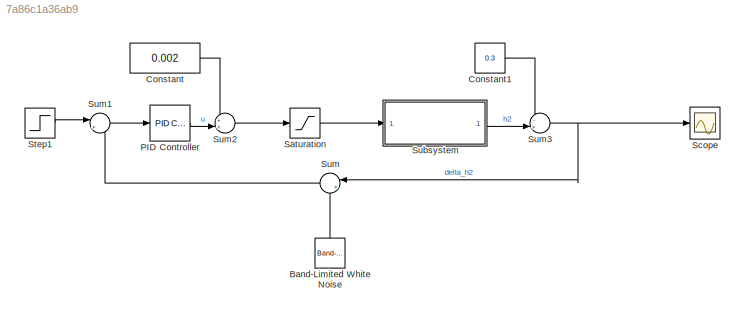
MODEL slx_7a86c1a36ab9
KIND model
CONFIG AbsTol = auto
CONFIG EnableMultiTasking = off
CONFIG FixedStep = 0.001
CONFIG MaxStep = auto
CONFIG MinStep = auto
CONFIG RelTol = 1e-3
CONFIG SampleTimeConstraint = Unconstrained
CONFIG SolverName = ode4
CONFIG StartTime = 0.0
CONFIG StopTime = 50
BLOCK [Reference] Band-Limited White Noise  REF=simulink/Sources/Band-Limited
White Noise
  NameLocation = right
  SourceBlock = simulink/Sources/Band-Limited\nWhite Noise
  SourceType = Band-Limited White Noise.
BLOCK [Constant] Constant
  Value = 0.002
BLOCK [Constant] Constant1
  Value = 0.3
BLOCK [Reference] PID Controller  REF=slpidlib/PID Controller
  LibrarySourceBlock = simulink/Continuous/PID Controller
  SourceBlock = slpidlib/PID Controller
  SourceType = PID 1dof
BLOCK [Saturate] Saturation
BLOCK [Scope] Scope
  Floating = off
  NumInputPorts = 1
  ScopeSpecificationString = Simulink.scopes.TimeScopeBlockCfg('CurrentConfiguration', extmgr.ConfigurationSet(extmgr.Configuration('Core','General UI',true,'DisplayFullSourceName',false,'ShowMainToolbar',true,'FigureColor',[0.125490196078431 0.125490196078431 0.125490196078431]),extmgr.Configuration('Sources','WiredSimulink',true,'DataLogging',false,'DataLoggingVariableName','ScopeData','DataLoggingLimitDataPoints',false,'Da...<+2668ch>
BLOCK [Step] Step1
  After = 0.8
  SampleTime = 0
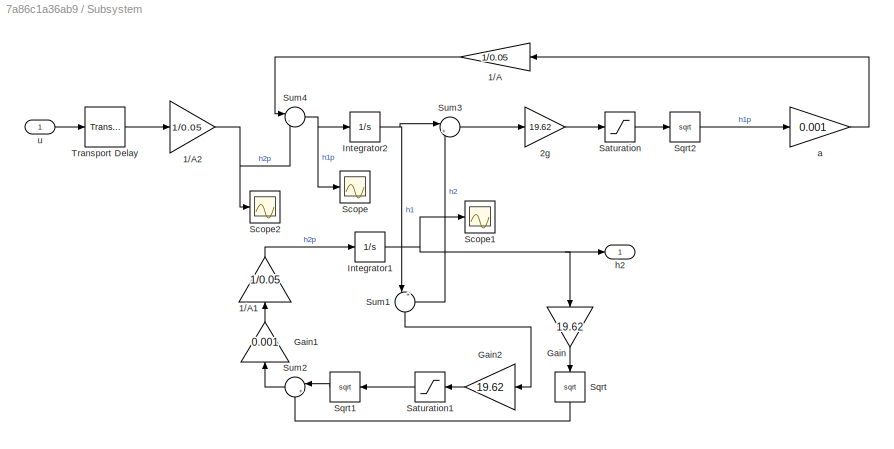
BLOCK [SubSystem] Subsystem
BLOCK [Gain] Subsystem/1//A
  Gain = 1/0.05
BLOCK [Gain] Subsystem/1//A1
  Gain = 1/0.05
  NameLocation = left
BLOCK [Gain] Subsystem/1//A2
  Gain = 1/0.05
  NameLocation = top
BLOCK [Gain] Subsystem/2g
  Gain = 19.62
BLOCK [Gain] Subsystem/Gain
  Gain = 19.62
  NameLocation = left
BLOCK [Gain] Subsystem/Gain1
  Gain = 0.001
  NameLocation = right
BLOCK [Gain] Subsystem/Gain2
  Gain = 19.62
  NameLocation = top
BLOCK [Integrator] Subsystem/Integrator1
  InitialCondition = 0.3
BLOCK [Integrator] Subsystem/Integrator2
  InitialCondition = 0.6
BLOCK [Saturate] Subsystem/Saturation
  LowerLimit = 0
  UpperLimit = inf
BLOCK [Saturate] Subsystem/Saturation1
  LowerLimit = 0
  NameLocation = top
  UpperLimit = inf
BLOCK [Scope] Subsystem/Scope
  Floating = off
  NumInputPorts = 1
  ScopeSpecificationString = Simulink.scopes.TimeScopeBlockCfg('CurrentConfiguration', extmgr.ConfigurationSet(extmgr.Configuration('Core','General UI',true,'DisplayFullSourceName',false,'ShowMainToolbar',true,'FigureColor','[0.129411764705882 0.129411764705882 0.129411764705882]'),extmgr.Configuration('Sources','WiredSimulink',true,'DataLogging',false,'DataLoggingVariableName','ScopeData1','DataLoggingLimitDataPoints',false,...<+2106ch>
BLOCK [Scope] Subsystem/Scope1
  Floating = off
  NumInputPorts = 1
  ScopeSpecificationString = Simulink.scopes.TimeScopeBlockCfg('CurrentConfiguration', extmgr.ConfigurationSet(extmgr.Configuration('Core','General UI',true,'DisplayFullSourceName',false,'ShowMainToolbar',true,'FigureColor','[0.129411764705882 0.129411764705882 0.129411764705882]'),extmgr.Configuration('Sources','WiredSimulink',true,'DataLogging',false,'DataLoggingVariableName','ScopeData2','DataLoggingLimitDataPoints',false,...<+2106ch>
BLOCK [Scope] Subsystem/Scope2
  Floating = off
  NumInputPorts = 1
  ScopeSpecificationString = Simulink.scopes.TimeScopeBlockCfg('CurrentConfiguration', extmgr.ConfigurationSet(extmgr.Configuration('Core','General UI',true,'DisplayFullSourceName',false,'ShowMainToolbar',true,'FigureColor','[0.129411764705882 0.129411764705882 0.129411764705882]'),extmgr.Configuration('Sources','WiredSimulink',true,'DataLogging',false,'DataLoggingVariableName','ScopeData3','DataLoggingLimitDataPoints',false,...<+2106ch>
BLOCK [Sqrt] Subsystem/Sqrt
  NameLocation = left
BLOCK [Sqrt] Subsystem/Sqrt1
  NameLocation = top
BLOCK [Sqrt] Subsystem/Sqrt2
BLOCK [Sum] Subsystem/Sum1
  Inputs = |+-
  NameLocation = left
BLOCK [Sum] Subsystem/Sum2
  Inputs = |+-
  NameLocation = top
BLOCK [Sum] Subsystem/Sum3
  Inputs = |+-
BLOCK [Sum] Subsystem/Sum4
  Inputs = |-+
BLOCK [TransportDelay] Subsystem/Transport Delay
  DelayTime = 0.005
BLOCK [Gain] Subsystem/a
  Gain = 0.001
BLOCK [Outport] Subsystem/h2
BLOCK [Inport] Subsystem/u
BLOCK [Sum] Sum
  Inputs = |++
  NameLocation = top
BLOCK [Sum] Sum1
  Inputs = |+-
BLOCK [Sum] Sum2
  Inputs = ++|
BLOCK [Sum] Sum3
  Inputs = -+|
LINE Band-Limited White Noise:1 -> Sum:2
LINE Constant1:1 -> Sum3:1
LINE Constant:1 -> Sum2:1
LINE PID Controller:1 -> Sum2:2
LINE Saturation:1 -> Subsystem:1
LINE Step1:1 -> Sum1:1
LINE Subsystem/1//A1:1 -> Subsystem/Integrator1:1
NET Subsystem/1//A2:1 -> Subsystem/Scope2:1, Subsystem/Sum4:2
LINE Subsystem/1//A:1 -> Subsystem/Sum4:1
LINE Subsystem/2g:1 -> Subsystem/Saturation:1
LINE Subsystem/Gain1:1 -> Subsystem/1//A1:1
LINE Subsystem/Gain2:1 -> Subsystem/Saturation1:1
LINE Subsystem/Gain:1 -> Subsystem/Sqrt:1
NET Subsystem/Integrator1:1 -> Subsystem/Gain:1, Subsystem/Scope1:1, Subsystem/Sum1:2, Subsystem/Sum3:2, Subsystem/h2:1
NET Subsystem/Integrator2:1 -> Subsystem/Sum1:1, Subsystem/Sum3:1
LINE Subsystem/Saturation1:1 -> Subsystem/Sqrt1:1
LINE Subsystem/Saturation:1 -> Subsystem/Sqrt2:1
LINE Subsystem/Sqrt1:1 -> Subsystem/Sum2:1
LINE Subsystem/Sqrt2:1 -> Subsystem/a:1
LINE Subsystem/Sqrt:1 -> Subsystem/Sum2:2
LINE Subsystem/Sum1:1 -> Subsystem/Gain2:1
LINE Subsystem/Sum2:1 -> Subsystem/Gain1:1
LINE Subsystem/Sum3:1 -> Subsystem/2g:1
NET Subsystem/Sum4:1 -> Subsystem/Integrator2:1, Subsystem/Scope:1
LINE Subsystem/Transport Delay:1 -> Subsystem/1//A2:1
LINE Subsystem/a:1 -> Subsystem/1//A:1
LINE Subsystem/u:1 -> Subsystem/Transport Delay:1
LINE Subsystem:1 -> Sum3:2
LINE Sum1:1 -> PID Controller:1
LINE Sum2:1 -> Saturation:1
NET Sum3:1 -> Scope:1, Sum:1
LINE Sum:1 -> Sum1:2
note: NET lines group one-source signal fan-out (src -> all destinations, sorted); 1:1 wires keep LINE
